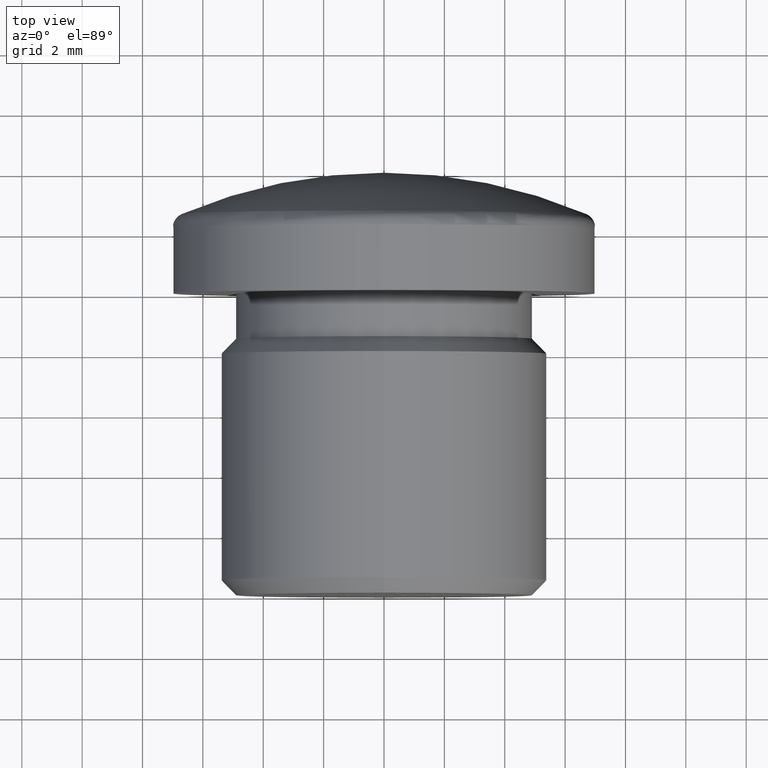
[diagram: clean part render]
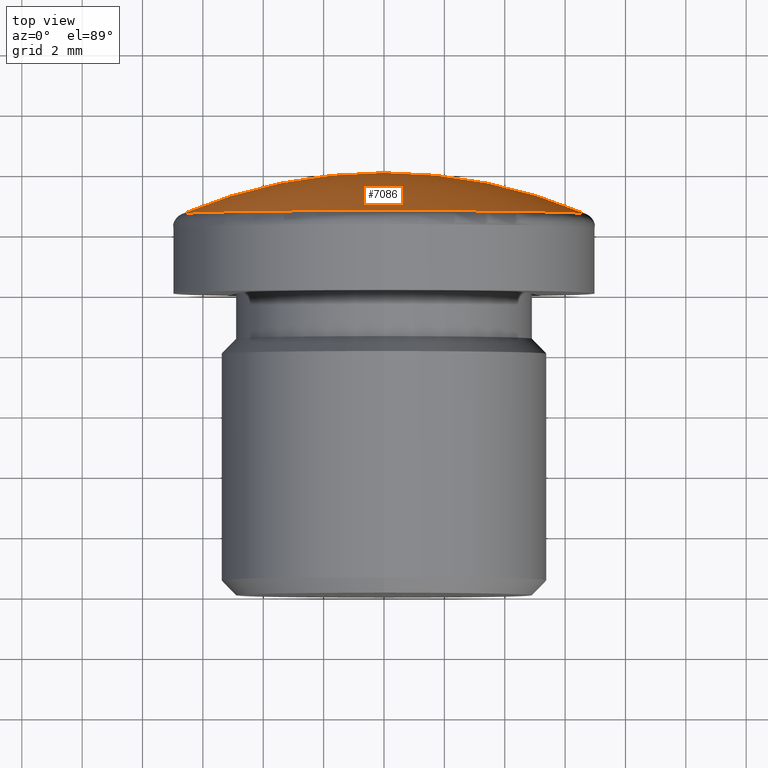
[diagram: same view with one face highlighted and labeled with its STEP entity id]
A machine part, top view. The second image highlights one B-rep face of the part: STEP entity #7086.
In plain terms, the highlighted spherical surface has radius 17.0833 mm.
Its self-contained STEP definition (entity closure, byte-faithful):
#17 = DIRECTION ( 'NONE',  ( 1.000000000000000000, 0.0000000000000000000, 0.0000000000000000000 ) ) ;
#796 = DIRECTION ( 'NONE',  ( 0.0000000000000000000, 0.0000000000000000000, -1.000000000000000000 ) ) ;
#1056 = CARTESIAN_POINT ( 'NONE',  ( 0.0000000000000000000, -3.083333333333038200, 0.0000000000000000000 ) ) ;
#1410 = CARTESIAN_POINT ( 'NONE',  ( 1.046052474271680300E-015, 14.00000000000001200, 0.0000000000000000000 ) ) ;
#1560 = AXIS2_PLACEMENT_3D ( 'NONE', #5250, #11890, #796 ) ;
#1608 = CIRCLE ( 'NONE', #14620, 17.08333333333305100 ) ;
#1901 = EDGE_CURVE ( 'NONE', #9426, #8680, #1608, .T. ) ;
#2072 = DIRECTION ( 'NONE',  ( 1.224646799147353200E-016, -0.0000000000000000000, 1.000000000000000000 ) ) ;
#2783 = CARTESIAN_POINT ( 'NONE',  ( 0.0000000000000000000, -3.083333333333038200, 0.0000000000000000000 ) ) ;
#2969 = AXIS2_PLACEMENT_3D ( 'NONE', #8870, #2072, #4332 ) ;
#3934 = DIRECTION ( 'NONE',  ( 0.0000000000000000000, 0.0000000000000000000, -1.000000000000000000 ) ) ;
#3941 = SPHERICAL_SURFACE ( 'NONE', #7753, 17.08333333333305100 ) ;
#4332 = DIRECTION ( 'NONE',  ( 1.000000000000000000, 0.0000000000000000000, -1.224646799147353200E-016 ) ) ;
#4372 = ORIENTED_EDGE ( 'NONE', *, *, #14563, .T. ) ;
#4679 = CARTESIAN_POINT ( 'NONE',  ( -6.695979899497491900, 12.63303173506918500, 8.200210351074618600E-016 ) ) ;
#4799 = EDGE_CURVE ( 'NONE', #9426, #9839, #6870, .T. ) ;
#5250 = CARTESIAN_POINT ( 'NONE',  ( 0.0000000000000000000, 12.63303173506918500, 0.0000000000000000000 ) ) ;
#5889 = ORIENTED_EDGE ( 'NONE', *, *, #4799, .T. ) ;
#6870 = CIRCLE ( 'NONE', #2969, 17.08333333333305100 ) ;
#7086 = ADVANCED_FACE ( 'NONE', ( #12453 ), #3941, .T. ) ;
#7227 = CIRCLE ( 'NONE', #1560, 6.695979899497487500 ) ;
#7444 = CARTESIAN_POINT ( 'NONE',  ( 8.386368972553040500E-016, 12.63303173506918500, 6.695979899497487500 ) ) ;
#7753 = AXIS2_PLACEMENT_3D ( 'NONE', #1056, #11264, #17 ) ;
#8680 = VERTEX_POINT ( 'NONE', #12331 ) ;
#8870 = CARTESIAN_POINT ( 'NONE',  ( 0.0000000000000000000, -3.083333333333038200, 0.0000000000000000000 ) ) ;
#9426 = VERTEX_POINT ( 'NONE', #1410 ) ;
#9640 = EDGE_LOOP ( 'NONE', ( #10876, #5889, #13437, #4372 ) ) ;
#9712 = DIRECTION ( 'NONE',  ( -1.000000000000000000, 0.0000000000000000000, 0.0000000000000000000 ) ) ;
#9839 = VERTEX_POINT ( 'NONE', #4679 ) ;
#10445 = EDGE_CURVE ( 'NONE', #9839, #11603, #7227, .T. ) ;
#10876 = ORIENTED_EDGE ( 'NONE', *, *, #1901, .F. ) ;
#11069 = AXIS2_PLACEMENT_3D ( 'NONE', #11219, #11121, #14606 ) ;
#11121 = DIRECTION ( 'NONE',  ( 0.0000000000000000000, 1.000000000000000000, 0.0000000000000000000 ) ) ;
#11219 = CARTESIAN_POINT ( 'NONE',  ( 0.0000000000000000000, 12.63303173506918500, 0.0000000000000000000 ) ) ;
#11264 = DIRECTION ( 'NONE',  ( 0.0000000000000000000, 0.0000000000000000000, 1.000000000000000000 ) ) ;
#11603 = VERTEX_POINT ( 'NONE', #7444 ) ;
#11890 = DIRECTION ( 'NONE',  ( 0.0000000000000000000, 1.000000000000000000, 0.0000000000000000000 ) ) ;
#12331 = CARTESIAN_POINT ( 'NONE',  ( 6.695979899497491900, 12.63303173506918500, 0.0000000000000000000 ) ) ;
#12453 = FACE_OUTER_BOUND ( 'NONE', #9640, .T. ) ;
#13107 = CIRCLE ( 'NONE', #11069, 6.695979899497487500 ) ;
#13437 = ORIENTED_EDGE ( 'NONE', *, *, #10445, .T. ) ;
#14563 = EDGE_CURVE ( 'NONE', #11603, #8680, #13107, .T. ) ;
#14606 = DIRECTION ( 'NONE',  ( 0.0000000000000000000, 0.0000000000000000000, -1.000000000000000000 ) ) ;
#14620 = AXIS2_PLACEMENT_3D ( 'NONE', #2783, #3934, #9712 ) ;